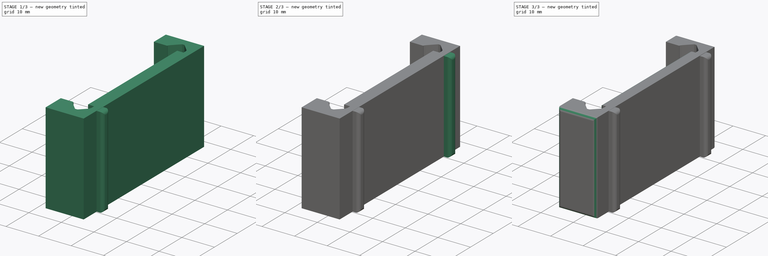
[diagram: build sequence overview — one tinted view per stage of 3, left to right]
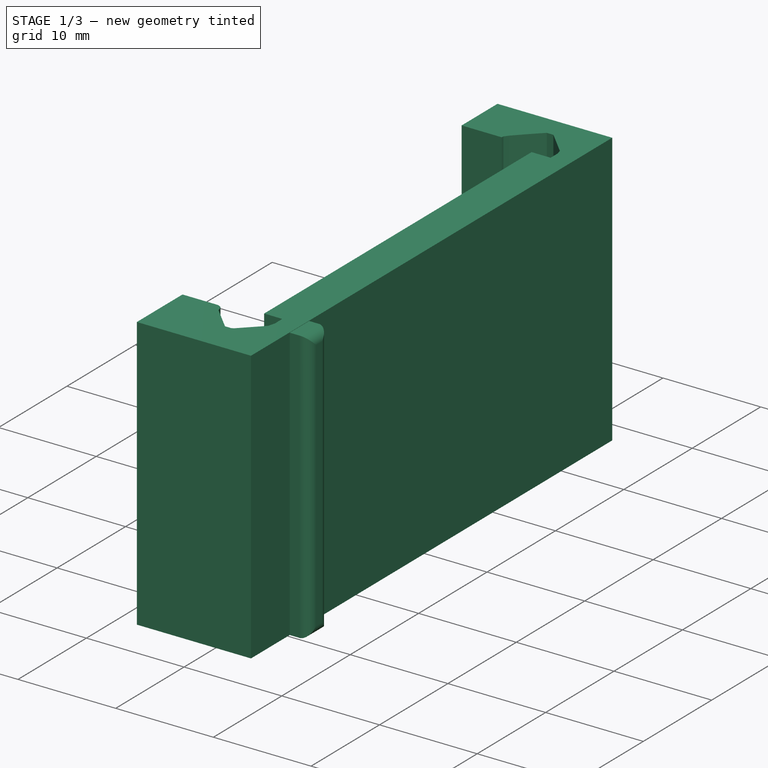
[diagram: stage 1 of 3 — iso view after this stage's code; geometry added in this stage tinted green]
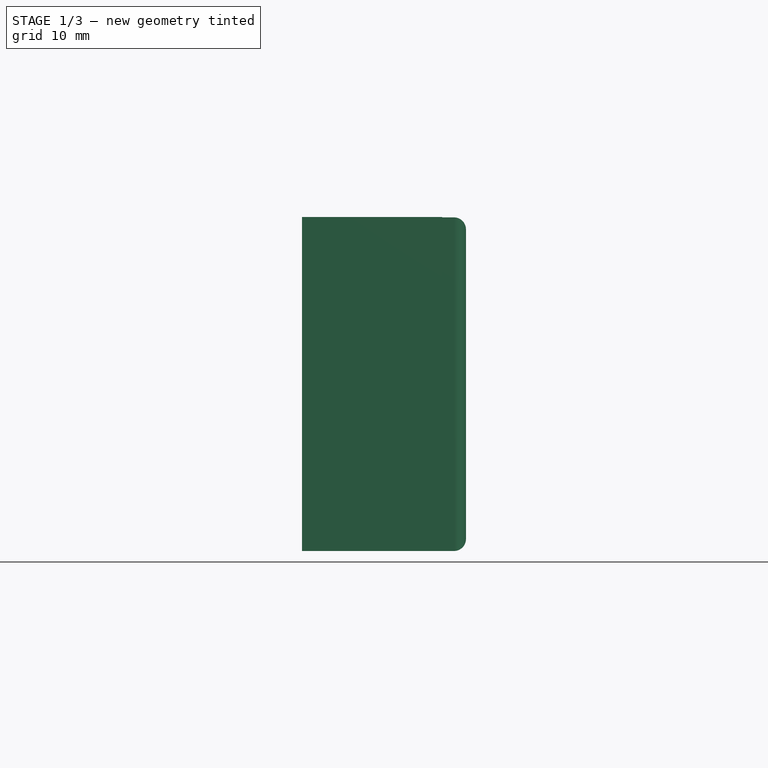
[diagram: stage 1 of 3 — front view after this stage's code; geometry added in this stage tinted green]
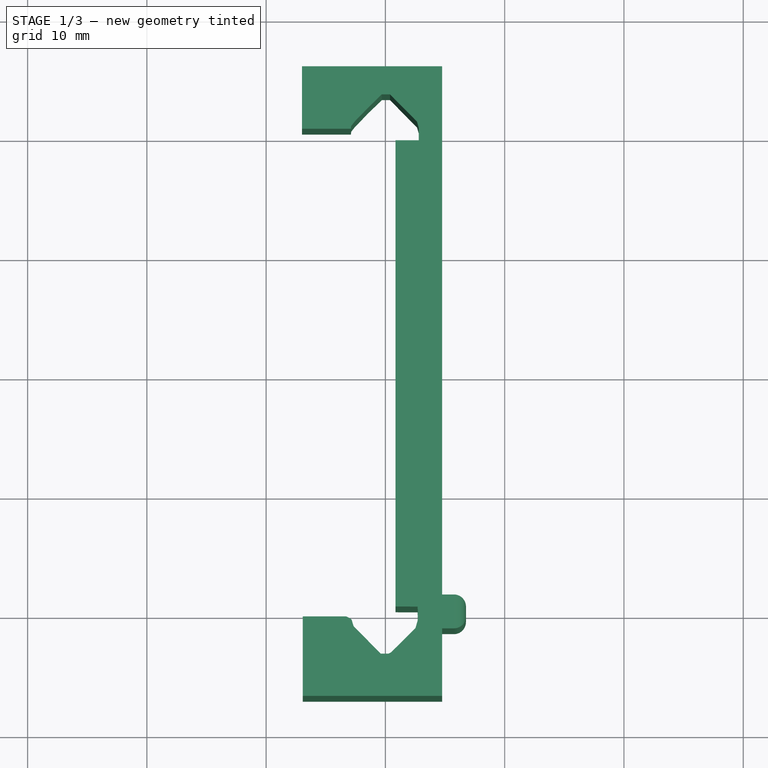
[diagram: stage 1 of 3 — top view after this stage's code; geometry added in this stage tinted green]
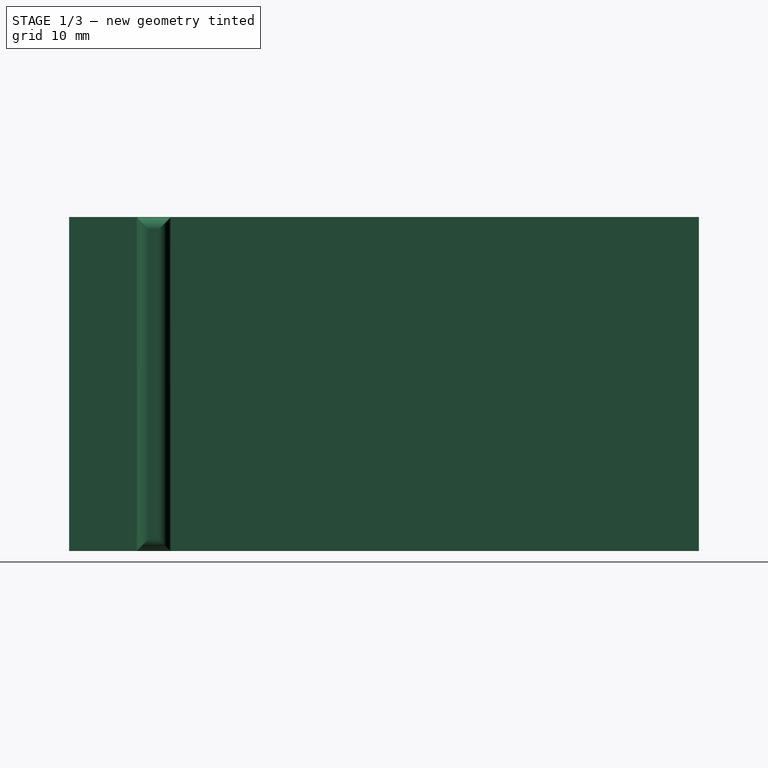
[diagram: stage 1 of 3 — right view after this stage's code; geometry added in this stage tinted green]
FCSTD DOCUMENT  (FreeCAD 0.14R2935 (Git))
Label: x-axis_limit_switch_mount
License: CC-BY 3.0
LicenseURL: http://creativecommons.org/licenses/by/3.0/
objects: PartDesign::Fillet×5, Sketcher::SketchObject×4, PartDesign::Pad×3
note: 15 computed .brp shape members not serialized (recipe doc carries the construction recipe); baked Part::Feature solids carry a one-line shape summary decoded from their .brp

FEATURE [Sketcher::SketchObject] Sketch
  sketch-geometry (122):
    g0: Circle CenterX=0 CenterY=10 CenterZ=0 NormalX=0 NormalY=0 NormalZ=-1 Radius=2.1
    g1: ArcOfCircle CenterX=11.875 CenterY=-20.5929 CenterZ=0 NormalX=0 NormalY=0 NormalZ=1 Radius=0.5 StartAngle=5.49779 EndAngle=6.28319
    g2: LineSegment StartX=12.375 StartY=-20.5929 StartZ=0 EndX=12.375 EndY=-20 EndZ=0
    g3: LineSegment StartX=12.375 StartY=-20 StartZ=0 EndX=10 EndY=-20 EndZ=0
    g4: LineSegment StartX=10 StartY=-20 StartZ=0 EndX=10 EndY=-10.3 EndZ=0
    g5: LineSegment StartX=9.7 StartY=-10 StartZ=0 EndX=10 EndY=-10.3 EndZ=0
    g6: LineSegment StartX=10 StartY=-9.7 StartZ=0 EndX=9.7 EndY=-10 EndZ=0
    g7: LineSegment StartX=10 StartY=-9.7 StartZ=0 EndX=10 EndY=6.7 EndZ=0
    g8: ArcOfCircle CenterX=9.7 CenterY=6.7 CenterZ=0 NormalX=0 NormalY=0 NormalZ=1 Radius=0.3 StartAngle=0 EndAngle=1.5708
    g9: LineSegment StartX=9.7 StartY=7 StartZ=0 EndX=8 EndY=7 EndZ=0
    g10: LineSegment StartX=8 StartY=7 StartZ=0 EndX=8 EndY=4 EndZ=0
    g11: LineSegment StartX=8 StartY=4 StartZ=0 EndX=7.06066 EndY=4 EndZ=0
    g12: LineSegment StartX=7.06066 StartY=4 StartZ=0 EndX=4 EndY=7.06066 EndZ=0
    g13: LineSegment StartX=4 StartY=7.06066 StartZ=0 EndX=4 EndY=9.7 EndZ=0
    g14: LineSegment StartX=4 StartY=9.7 StartZ=0 EndX=3.7 EndY=10 EndZ=0
    g15: LineSegment StartX=3.7 StartY=10 StartZ=0 EndX=4 EndY=10.3 EndZ=0
    g16: LineSegment StartX=4 StartY=10.3 StartZ=0 EndX=4 EndY=12.9393 EndZ=0
    g17: LineSegment StartX=4 StartY=12.9393 StartZ=0 EndX=7.06066 EndY=16 EndZ=0
    g18: LineSegment StartX=7.06066 StartY=16 StartZ=0 EndX=8 EndY=16 EndZ=0
    g19: LineSegment StartX=8 StartY=16 StartZ=0 EndX=8 EndY=13 EndZ=0
    g20: LineSegment StartX=8 StartY=13 StartZ=0 EndX=9.7 EndY=13 EndZ=0
    g21: ArcOfCircle CenterX=9.7 CenterY=13.3 CenterZ=0 NormalX=0 NormalY=0 NormalZ=1 Radius=0.3 StartAngle=4.71239 EndAngle=6.28319
    g22: LineSegment StartX=10 StartY=13.3 StartZ=0 EndX=10 EndY=20 EndZ=0
    g23: LineSegment StartX=12.375 StartY=20 StartZ=0 EndX=10 EndY=20 EndZ=0
    g24: LineSegment StartX=12.375 StartY=20.5929 StartZ=0 EndX=12.375 EndY=20 EndZ=0
    g25: ArcOfCircle CenterX=11.875 CenterY=20.5929 CenterZ=0 NormalX=0 NormalY=0 NormalZ=1 Radius=0.5 StartAngle=0 EndAngle=0.785398
    g26: LineSegment StartX=10.3536 StartY=22.8214 StartZ=0 EndX=12.2286 EndY=20.9464 EndZ=0
    g27: ArcOfCircle CenterX=10 CenterY=22.4679 CenterZ=0 NormalX=0 NormalY=0 NormalZ=1 Radius=0.5 StartAngle=0.785398 EndAngle=2.35619
    g28: LineSegment StartX=7.77145 StartY=20.9464 StartZ=0 EndX=9.64645 EndY=22.8214 EndZ=0
    g29: ArcOfCircle CenterX=8.125 CenterY=20.5929 CenterZ=0 NormalX=0 NormalY=0 NormalZ=1 Radius=0.5 StartAngle=2.35619 EndAngle=3.14159
    g30: LineSegment StartX=7.625 StartY=20.5 StartZ=0 EndX=7.625 EndY=20.5929 EndZ=0
    g31: ArcOfCircle CenterX=7.125 CenterY=20.5 CenterZ=0 NormalX=0 NormalY=0 NormalZ=1 Radius=0.5 StartAngle=4.71239 EndAngle=6.28319
    g32: LineSegment StartX=7.125 StartY=20 StartZ=0 EndX=3.3 EndY=20 EndZ=0
    g33: ArcOfCircle CenterX=3.3 CenterY=19.7 CenterZ=0 NormalX=0 NormalY=0 NormalZ=1 Radius=0.3 StartAngle=1.5708 EndAngle=3.14159
    g34: LineSegment StartX=3 StartY=19.7 StartZ=0 EndX=3 EndY=18 EndZ=0
    g35: LineSegment StartX=3 StartY=18 StartZ=0 EndX=6 EndY=18 EndZ=0
    g36: LineSegment StartX=6 StartY=18 StartZ=0 EndX=6 EndY=17.0607 EndZ=0
    g37: LineSegment StartX=6 StartY=17.0607 StartZ=0 EndX=2.93934 EndY=14 EndZ=0
    g38: LineSegment StartX=2.93934 StartY=14 StartZ=0 EndX=0.3 EndY=14 EndZ=0
    g39: LineSegment StartX=0.3 StartY=14 StartZ=0 EndX=0 EndY=13.7 EndZ=0
    g40: LineSegment StartX=0 StartY=13.7 StartZ=0 EndX=-0.3 EndY=14 EndZ=0
    g41: LineSegment StartX=-0.3 StartY=14 StartZ=0 EndX=-2.93934 EndY=14 EndZ=0
    g42: LineSegment StartX=-2.93934 StartY=14 StartZ=0 EndX=-6 EndY=17.0607 EndZ=0
    g43: LineSegment StartX=-6 StartY=17.0607 StartZ=0 EndX=-6 EndY=18 EndZ=0
    g44: LineSegment StartX=-6 StartY=18 StartZ=0 EndX=-3 EndY=18 EndZ=0
    g45: LineSegment StartX=-3 StartY=18 StartZ=0 EndX=-3 EndY=19.7 EndZ=0
    g46: ArcOfCircle CenterX=-3.3 CenterY=19.7 CenterZ=0 NormalX=0 NormalY=0 NormalZ=1 Radius=0.3 StartAngle=0 EndAngle=1.5708
    g47: LineSegment StartX=-3.3 StartY=20 StartZ=0 EndX=-9 EndY=20 EndZ=0
    g48: ArcOfCircle CenterX=-9 CenterY=19 CenterZ=0 NormalX=0 NormalY=0 NormalZ=1 Radius=1 StartAngle=1.5708 EndAngle=3.14159
    g49: LineSegment StartX=-10 StartY=19 StartZ=0 EndX=-10 EndY=13.3 EndZ=0
    g50: ArcOfCircle CenterX=-9.7 CenterY=13.3 CenterZ=0 NormalX=0 NormalY=0 NormalZ=1 Radius=0.3 StartAngle=3.14159 EndAngle=4.71239
    g51: LineSegment StartX=-9.7 StartY=13 StartZ=0 EndX=-8 EndY=13 EndZ=0
    g52: LineSegment StartX=-8 StartY=13 StartZ=0 EndX=-8 EndY=16 EndZ=0
    g53: LineSegment StartX=-8 StartY=16 StartZ=0 EndX=-7.06066 EndY=16 EndZ=0
    g54: LineSegment StartX=-7.06066 StartY=16 StartZ=0 EndX=-4 EndY=12.9393 EndZ=0
    g55: LineSegment StartX=-4 StartY=12.9393 StartZ=0 EndX=-4 EndY=10.3 EndZ=0
    g56: LineSegment StartX=-4 StartY=10.3 StartZ=0 EndX=-3.7 EndY=10 EndZ=0
    g57: LineSegment StartX=-3.7 StartY=10 StartZ=0 EndX=-4 EndY=9.7 EndZ=0
    g58: LineSegment StartX=-4 StartY=9.7 StartZ=0 EndX=-4 EndY=7.06066 EndZ=0
    g59: LineSegment StartX=-4 StartY=7.06066 StartZ=0 EndX=-7.06066 EndY=4 EndZ=0
    g60: LineSegment StartX=-7.06066 StartY=4 StartZ=0 EndX=-8 EndY=4 EndZ=0
    g61: LineSegment StartX=-8 StartY=4 StartZ=0 EndX=-8 EndY=7 EndZ=0
    g62: LineSegment StartX=-8 StartY=7 StartZ=0 EndX=-9.7 EndY=7 EndZ=0
    g63: ArcOfCircle CenterX=-9.7 CenterY=6.7 CenterZ=0 NormalX=0 NormalY=0 NormalZ=1 Radius=0.3 StartAngle=1.5708 EndAngle=3.14159
    g64: LineSegment StartX=-10 StartY=6.7 StartZ=0 EndX=-10 EndY=-6.7 EndZ=0
    g65: ArcOfCircle CenterX=-9.7 CenterY=-6.7 CenterZ=0 NormalX=0 NormalY=0 NormalZ=1 Radius=0.3 StartAngle=3.14159 EndAngle=4.71239
    g66: LineSegment StartX=-9.7 StartY=-7 StartZ=0 EndX=-8 EndY=-7 EndZ=0
    g67: LineSegment StartX=-8 StartY=-7 StartZ=0 EndX=-8 EndY=-4 EndZ=0
    g68: LineSegment StartX=-8 StartY=-4 StartZ=0 EndX=-7.06066 EndY=-4 EndZ=0
    g69: LineSegment StartX=-7.06066 StartY=-4 StartZ=0 EndX=-4 EndY=-7.06066 EndZ=0
    g70: LineSegment StartX=-4 StartY=-7.06066 StartZ=0 EndX=-4 EndY=-9.7 EndZ=0
    g71: LineSegment StartX=-4 StartY=-9.7 StartZ=0 EndX=-3.7 EndY=-10 EndZ=0
    g72: LineSegment StartX=-3.7 StartY=-10 StartZ=0 EndX=-4 EndY=-10.3 EndZ=0
    g73: LineSegment StartX=-4 StartY=-10.3 StartZ=0 EndX=-4 EndY=-12.9393 EndZ=0
    g74: LineSegment StartX=-4 StartY=-12.9393 StartZ=0 EndX=-7.06066 EndY=-16 EndZ=0
    g75: LineSegment StartX=-7.06066 StartY=-16 StartZ=0 EndX=-8 EndY=-16 EndZ=0
    g76: LineSegment StartX=-8 StartY=-16 StartZ=0 EndX=-8 EndY=-13 EndZ=0
    g77: LineSegment StartX=-8 StartY=-13 StartZ=0 EndX=-9.7 EndY=-13 EndZ=0
    g78: ArcOfCircle CenterX=-9.7 CenterY=-13.3 CenterZ=0 NormalX=0 NormalY=0 NormalZ=1 Radius=0.3 StartAngle=1.5708 EndAngle=3.14159
    g79: LineSegment StartX=-10 StartY=-13.3 StartZ=0 EndX=-10 EndY=-19 EndZ=0
    g80: ArcOfCircle CenterX=-9 CenterY=-19 CenterZ=0 NormalX=0 NormalY=0 NormalZ=1 Radius=1 StartAngle=3.14159 EndAngle=4.71239
    g81: LineSegment StartX=-9 StartY=-20 StartZ=0 EndX=-3.3 EndY=-20 EndZ=0
    g82: ArcOfCircle CenterX=-3.3 CenterY=-19.7 CenterZ=0 NormalX=0 NormalY=0 NormalZ=1 Radius=0.3 StartAngle=4.71239 EndAngle=6.28319
    g83: LineSegment StartX=-3 StartY=-19.7 StartZ=0 EndX=-3 EndY=-18 EndZ=0
    g84: LineSegment StartX=-3 StartY=-18 StartZ=0 EndX=-6 EndY=-18 EndZ=0
    g85: LineSegment StartX=-6 StartY=-18 StartZ=0 EndX=-6 EndY=-17.0607 EndZ=0
    g86: LineSegment StartX=-6 StartY=-17.0607 StartZ=0 EndX=-2.93934 EndY=-14 EndZ=0
    g87: LineSegment StartX=-2.93934 StartY=-14 StartZ=0 EndX=-0.3 EndY=-14 EndZ=0
    g88: LineSegment StartX=-0.3 StartY=-14 StartZ=0 EndX=0 EndY=-13.7 EndZ=0
    g89: LineSegment StartX=0 StartY=-13.7 StartZ=0 EndX=0.3 EndY=-14 EndZ=0
    g90: LineSegment StartX=0.3 StartY=-14 StartZ=0 EndX=2.93934 EndY=-14 EndZ=0
    g91: LineSegment StartX=2.93934 StartY=-14 StartZ=0 EndX=6 EndY=-17.0607 EndZ=0
    g92: LineSegment StartX=6 StartY=-17.0607 StartZ=0 EndX=6 EndY=-18 EndZ=0
    g93: LineSegment StartX=6 StartY=-18 StartZ=0 EndX=3 EndY=-18 EndZ=0
    g94: LineSegment StartX=3 StartY=-18 StartZ=0 EndX=3 EndY=-19.7 EndZ=0
    g95: ArcOfCircle CenterX=3.3 CenterY=-19.7 CenterZ=0 NormalX=0 NormalY=0 NormalZ=1 Radius=0.3 StartAngle=3.14159 EndAngle=4.71239
    g96: LineSegment StartX=3.3 StartY=-20 StartZ=0 EndX=7.125 EndY=-20 EndZ=0
    g97: ArcOfCircle CenterX=7.125 CenterY=-20.5 CenterZ=0 NormalX=0 NormalY=0 NormalZ=1 Radius=0.5 StartAngle=0 EndAngle=1.5708
    g98: LineSegment StartX=7.625 StartY=-20.5 StartZ=0 EndX=7.625 EndY=-20.5929 EndZ=0
    g99: ArcOfCircle CenterX=8.125 CenterY=-20.5929 CenterZ=0 NormalX=0 NormalY=0 NormalZ=1 Radius=0.5 StartAngle=3.14159 EndAngle=3.92699
    g100: LineSegment StartX=7.77145 StartY=-20.9464 StartZ=0 EndX=9.64645 EndY=-22.8214 EndZ=0
    g101: ArcOfCircle CenterX=10 CenterY=-22.4679 CenterZ=0 NormalX=0 NormalY=0 NormalZ=1 Radius=0.5 StartAngle=3.92699 EndAngle=5.49779
    g102: LineSegment StartX=10.3536 StartY=-22.8214 StartZ=0 EndX=12.2286 EndY=-20.9464 EndZ=0
    g103: Circle CenterX=0 CenterY=-10 CenterZ=0 NormalX=0 NormalY=0 NormalZ=-1 Radius=2.1
    g104: LineSegment StartX=-8 StartY=2.5 StartZ=0 EndX=-6.43934 EndY=2.5 EndZ=0
    g105: LineSegment StartX=-6.43934 StartY=2.5 StartZ=0 EndX=-2.93934 EndY=6 EndZ=0
    g106: LineSegment StartX=-2.93934 StartY=6 StartZ=0 EndX=2.93934 EndY=6 EndZ=0
    g107: LineSegment StartX=2.93934 StartY=6 StartZ=0 EndX=6.43934 EndY=2.5 EndZ=0
    g108: LineSegment StartX=6.43934 StartY=2.5 StartZ=0 EndX=8 EndY=2.5 EndZ=0
    g109: LineSegment StartX=8 StartY=2.5 StartZ=0 EndX=8 EndY=-2.5 EndZ=0
    g110: LineSegment StartX=8 StartY=-2.5 StartZ=0 EndX=6.43934 EndY=-2.5 EndZ=0
    g111: LineSegment StartX=6.43934 StartY=-2.5 StartZ=0 EndX=2.93934 EndY=-6 EndZ=0
    g112: LineSegment StartX=2.93934 StartY=-6 StartZ=0 EndX=-2.93934 EndY=-6 EndZ=0
    g113: LineSegment StartX=-2.93934 StartY=-6 StartZ=0 EndX=-6.43934 EndY=-2.5 EndZ=0
    g114: LineSegment StartX=-6.43934 StartY=-2.5 StartZ=0 EndX=-8 EndY=-2.5 EndZ=0
    g115: LineSegment StartX=-8 StartY=-2.5 StartZ=0 EndX=-8 EndY=2.5 EndZ=0
    g116: LineSegment StartX=8 StartY=-16 StartZ=0 EndX=7.06066 EndY=-16 EndZ=0
    g117: LineSegment StartX=7.06066 StartY=-16 StartZ=0 EndX=4 EndY=-12.9393 EndZ=0
    g118: LineSegment StartX=4 StartY=-12.9393 StartZ=0 EndX=4 EndY=-7.06066 EndZ=0
    g119: LineSegment StartX=4 StartY=-7.06066 StartZ=0 EndX=7.06066 EndY=-4 EndZ=0
    g120: LineSegment StartX=7.06066 StartY=-4 StartZ=0 EndX=8 EndY=-4 EndZ=0
    g121: LineSegment StartX=8 StartY=-4 StartZ=0 EndX=8 EndY=-16 EndZ=0
FEATURE [Sketcher::SketchObject] Sketch001
  sketch-geometry (31):
    g0: LineSegment StartX=7.12948 StartY=20.7812 StartZ=0 EndX=7.44524 EndY=21.1871 EndZ=0
    g1: LineSegment StartX=7.44524 StartY=21.1871 StartZ=0 EndX=7.85489 EndY=21.6076 EndZ=0
    g2: LineSegment StartX=7.85489 StartY=21.6076 StartZ=0 EndX=8.50825 EndY=22.2835 EndZ=0
    g3: LineSegment StartX=8.50825 StartY=22.2835 StartZ=0 EndX=9.69649 EndY=23.4421 EndZ=0
    g4: LineSegment StartX=9.69649 StartY=23.4421 StartZ=0 EndX=10.3845 EndY=23.4421 EndZ=0
    g5: LineSegment StartX=10.3845 StartY=23.4421 StartZ=0 EndX=12.6553 EndY=21.142 EndZ=0
    g6: LineSegment StartX=12.6553 StartY=21.142 StartZ=0 EndX=12.7981 EndY=20.6259 EndZ=0
    g7: LineSegment StartX=12.7981 StartY=20.6259 StartZ=0 EndX=12.7981 EndY=19.9836 EndZ=0
    g8: LineSegment StartX=12.7981 StartY=19.9836 StartZ=0 EndX=12.7981 EndY=19.5858 EndZ=0
    g9: LineSegment StartX=12.7981 StartY=19.5858 StartZ=0 EndX=10.851 EndY=19.5858 EndZ=0
    g10: LineSegment StartX=10.851 StartY=19.5858 StartZ=0 EndX=10.851 EndY=17.4753 EndZ=0
    g11: LineSegment StartX=10.851 StartY=17.4753 StartZ=0 EndX=10.851 EndY=14.855 EndZ=0
    g12: LineSegment StartX=10.851 StartY=14.855 StartZ=0 EndX=10.851 EndY=-19.5053 EndZ=0
    g13: LineSegment StartX=10.851 StartY=-19.5053 StartZ=0 EndX=12.7015 EndY=-19.5175 EndZ=0
    g14: LineSegment StartX=12.7015 StartY=-19.5175 StartZ=0 EndX=12.7241 EndY=-20.6001 EndZ=0
    g15: LineSegment StartX=12.7241 StartY=-20.6001 StartZ=0 EndX=12.5211 EndY=-21.3218 EndZ=0
    g16: LineSegment StartX=12.5211 StartY=-21.3218 StartZ=0 EndX=10.4561 EndY=-23.3626 EndZ=0
    g17: LineSegment StartX=10.4561 StartY=-23.3626 StartZ=0 EndX=10.2431 EndY=-23.4645 EndZ=0
    g18: LineSegment StartX=10.2431 StartY=-23.4645 StartZ=0 EndX=9.6102 EndY=-23.4584 EndZ=0
    g19: LineSegment StartX=9.6102 StartY=-23.4584 StartZ=0 EndX=7.33356 EndY=-21.1639 EndZ=0
    g20: LineSegment StartX=7.33356 StartY=-21.1639 StartZ=0 EndX=7.17275 EndY=-20.632 EndZ=0
    g21: LineSegment StartX=7.17275 StartY=-20.632 StartZ=0 EndX=7.01309 EndY=-20.4734 EndZ=0
    g22: LineSegment StartX=7.01309 StartY=-20.4734 StartZ=0 EndX=6.70221 EndY=-20.3407 EndZ=0
    g23: LineSegment StartX=6.70221 StartY=-20.3407 StartZ=0 EndX=3.07281 EndY=-20.3407 EndZ=0
    g24: LineSegment StartX=3.07281 StartY=-20.3407 StartZ=0 EndX=3.07281 EndY=-27.0067 EndZ=0
    g25: LineSegment StartX=3.07281 StartY=-27.0067 StartZ=0 EndX=14.7525 EndY=-27.0067 EndZ=0
    g26: LineSegment StartX=14.7525 StartY=-27.0067 StartZ=0 EndX=14.7525 EndY=25.7958 EndZ=0
    g27: LineSegment StartX=14.7525 StartY=25.7958 StartZ=0 EndX=3.01101 EndY=25.7958 EndZ=0
    g28: LineSegment StartX=3.01101 StartY=25.7958 StartZ=0 EndX=3.01101 EndY=20.5556 EndZ=0
    g29: LineSegment StartX=3.01101 StartY=20.5556 StartZ=0 EndX=7.10693 EndY=20.5556 EndZ=0
    g30: LineSegment StartX=7.10693 StartY=20.5556 StartZ=0 EndX=7.12948 EndY=20.7812 EndZ=0
  constraints (45):
    c: Coincident(g0,g1)
    c: Coincident(g1,g2)
    c: Coincident(g2,g3)
    c: Coincident(g3,g4)
    c: Horizontal(g4)
    c: Coincident(g4,g5)
    c: Coincident(g5,g6)
    c: Coincident(g6,g7)
    c: Vertical(g7)
    c: Coincident(g7,g8)
    c: Vertical(g8)
    c: Coincident(g8,g9)
    c: Horizontal(g9)
    c: Coincident(g9,g10)
    c: Vertical(g10)
    c: Coincident(g10,g11)
    c: Vertical(g11)
    c: Coincident(g11,g12)
    c: Vertical(g12)
    c: Coincident(g12,g13)
    c: Coincident(g13,g14)
    c: Coincident(g14,g15)
    c: Coincident(g15,g16)
    c: Coincident(g16,g17)
    c: Coincident(g17,g18)
    c: Coincident(g18,g19)
    c: Coincident(g19,g20)
    c: Coincident(g20,g21)
    c: Coincident(g21,g22)
    c: Coincident(g22,g23)
    c: Horizontal(g23)
    c: Coincident(g23,g24)
    c: Vertical(g24)
    c: Coincident(g24,g25)
    c: Horizontal(g25)
    c: Coincident(g25,g26)
    c: Vertical(g26)
    c: Coincident(g26,g27)
    c: Horizontal(g27)
    c: Coincident(g27,g28)
    c: Vertical(g28)
    c: Coincident(g28,g29)
    c: Horizontal(g29)
    c: Coincident(g29,g30)
    c: Coincident(g0,g30)
FEATURE [PartDesign::Pad] Pad
  Length = 28
  Length2 = 100
  Sketch = -> Sketch001
  Type = 0
FEATURE [Sketcher::SketchObject] Sketch002
  Placement = pos=(14.7525,0,0) rot=(0.57735,0.57735,0.57735;2.0944rad)
  Support = -> Pad [Face14]
  sketch-geometry (4):
    g0: LineSegment StartX=-21.3381 StartY=27.9699 StartZ=0 EndX=-18.5 EndY=27.9699 EndZ=0
    g1: LineSegment StartX=-18.5 StartY=27.9699 StartZ=0 EndX=-18.5 EndY=0 EndZ=0
    g2: LineSegment StartX=-18.5 StartY=0 StartZ=0 EndX=-21.3381 EndY=0 EndZ=0
    g3: LineSegment StartX=-21.3381 StartY=0 StartZ=0 EndX=-21.3381 EndY=27.9699 EndZ=0
  constraints (9):
    c: Coincident(g0,g1)
    c: Coincident(g1,g2)
    c: Coincident(g2,g3)
    c: Coincident(g3,g0)
    c: Horizontal(g0)
    c: Horizontal(g2)
    c: Vertical(g1)
    c: Vertical(g3)
    c: PointOnObject(g1,g-1)
FEATURE [PartDesign::Pad] Pad001
  Length = 2
  Length2 = 100
  Sketch = -> Sketch002
  Type = 0
FEATURE [PartDesign::Fillet] Fillet
  Base = -> Pad001 [Edge92,Edge94,Edge96,Edge90]
  Radius = 1
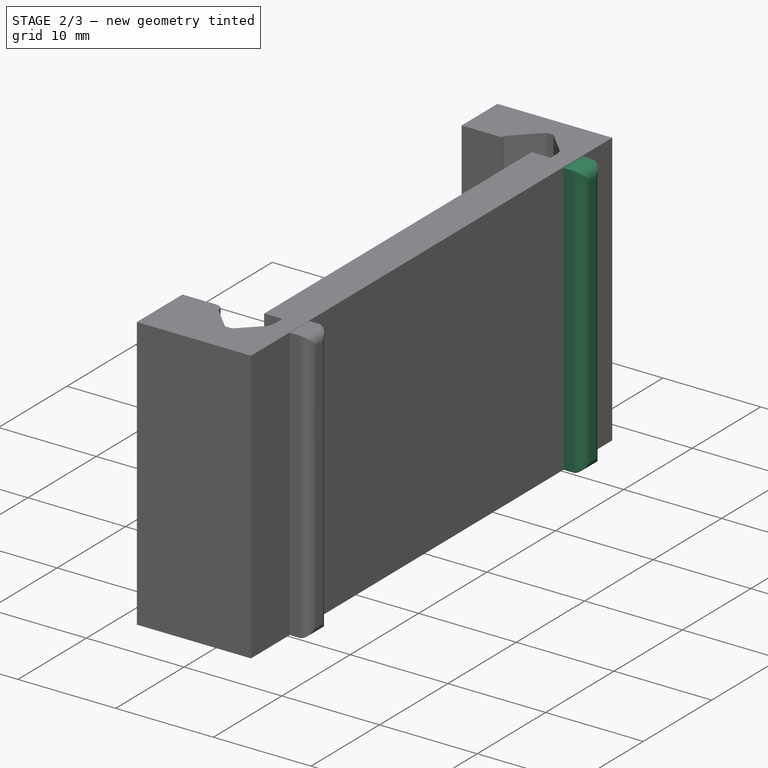
[diagram: stage 2 of 3 — iso view after this stage's code; geometry added in this stage tinted green]
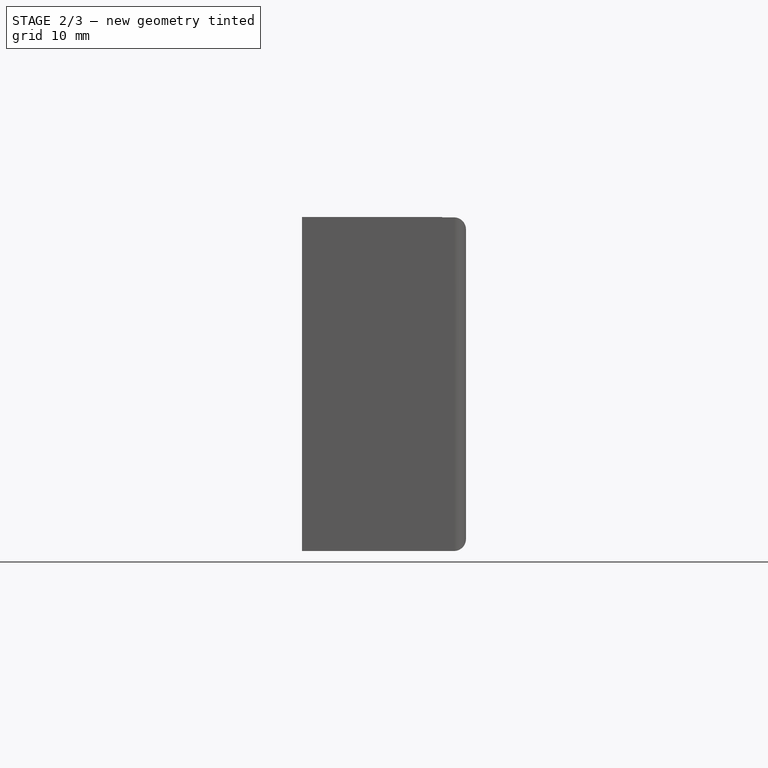
[diagram: stage 2 of 3 — front view after this stage's code; geometry added in this stage tinted green]
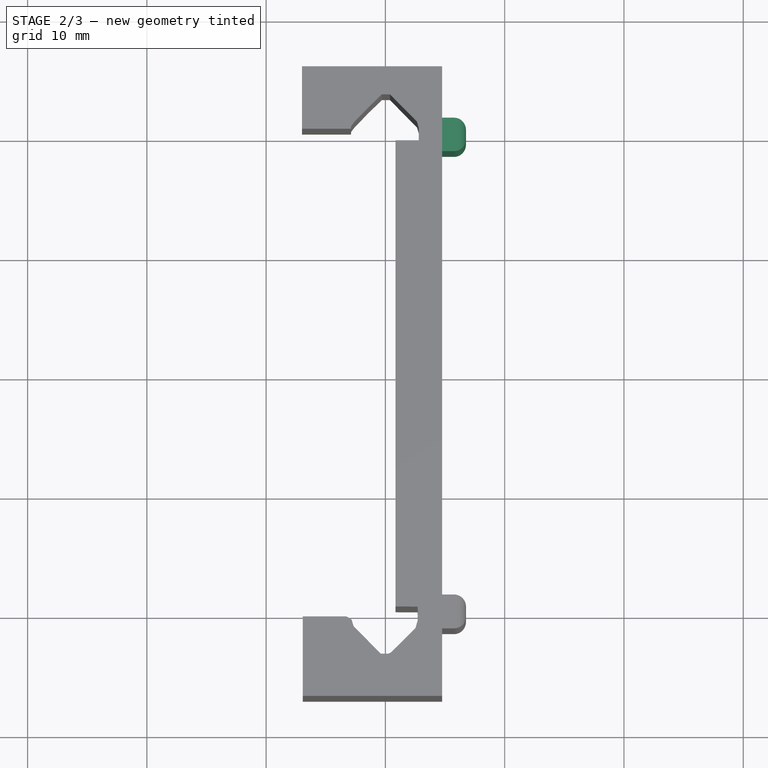
[diagram: stage 2 of 3 — top view after this stage's code; geometry added in this stage tinted green]
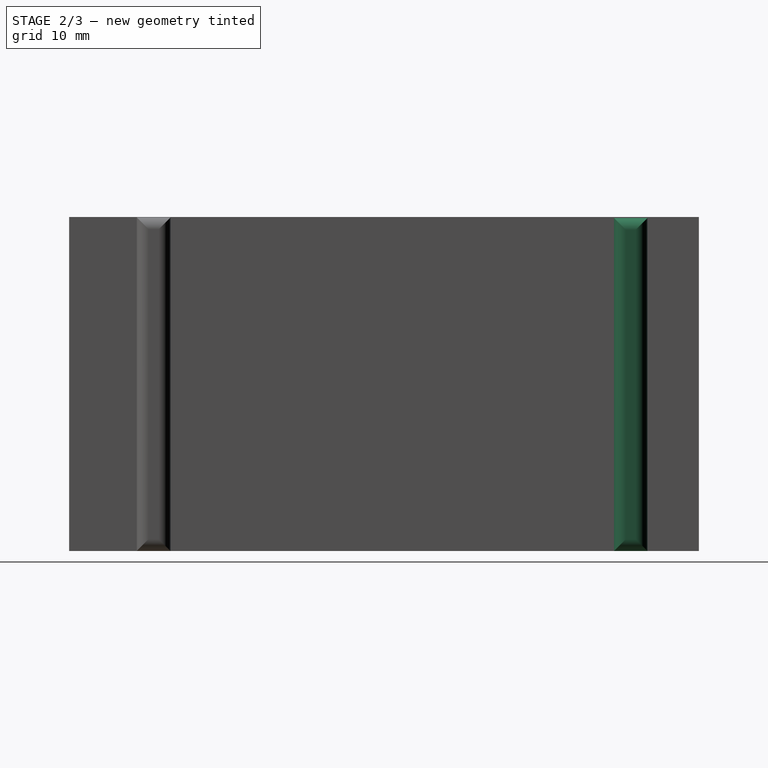
[diagram: stage 2 of 3 — right view after this stage's code; geometry added in this stage tinted green]
FEATURE [Sketcher::SketchObject] Sketch003
  Placement = pos=(14.7525,0,0) rot=(0.57735,0.57735,0.57735;2.0944rad)
  Support = -> Fillet [Face4]
  sketch-geometry (4):
    g0: LineSegment StartX=18.6824 StartY=27.9213 StartZ=0 EndX=21.4846 EndY=27.9213 EndZ=0
    g1: LineSegment StartX=21.4846 StartY=27.9213 StartZ=0 EndX=21.4846 EndY=0 EndZ=0
    g2: LineSegment StartX=21.4846 StartY=0 StartZ=0 EndX=18.6824 EndY=0 EndZ=0
    g3: LineSegment StartX=18.6824 StartY=0 StartZ=0 EndX=18.6824 EndY=27.9213 EndZ=0
  constraints (9):
    c: Coincident(g0,g1)
    c: Coincident(g1,g2)
    c: Coincident(g2,g3)
    c: Coincident(g3,g0)
    c: Horizontal(g0)
    c: Horizontal(g2)
    c: Vertical(g1)
    c: Vertical(g3)
    c: PointOnObject(g1,g-1)
FEATURE [PartDesign::Pad] Pad002
  Length = 2
  Length2 = 100
  Sketch = -> Sketch003
  Type = 0
FEATURE [PartDesign::Fillet] Fillet001
  Base = -> Pad002 [Edge8,Edge9,Edge10,Edge11]
  Radius = 1
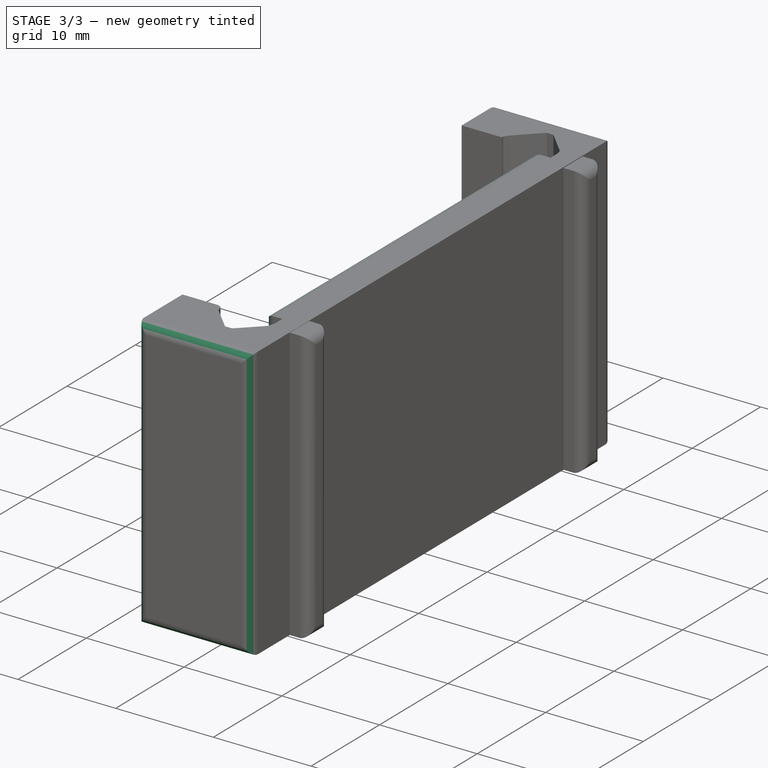
[diagram: stage 3 of 3 — iso view after this stage's code; geometry added in this stage tinted green]
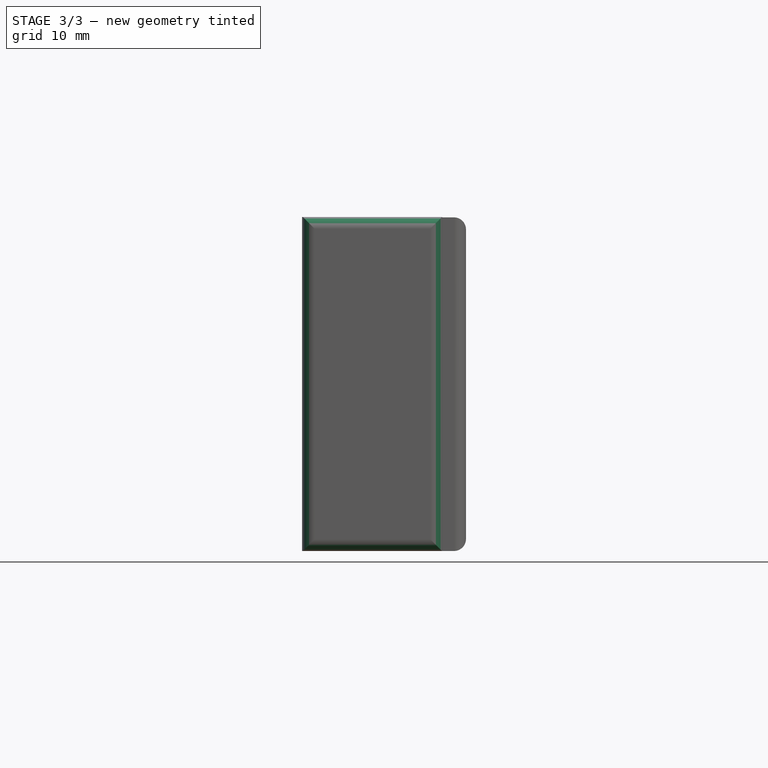
[diagram: stage 3 of 3 — front view after this stage's code; geometry added in this stage tinted green]
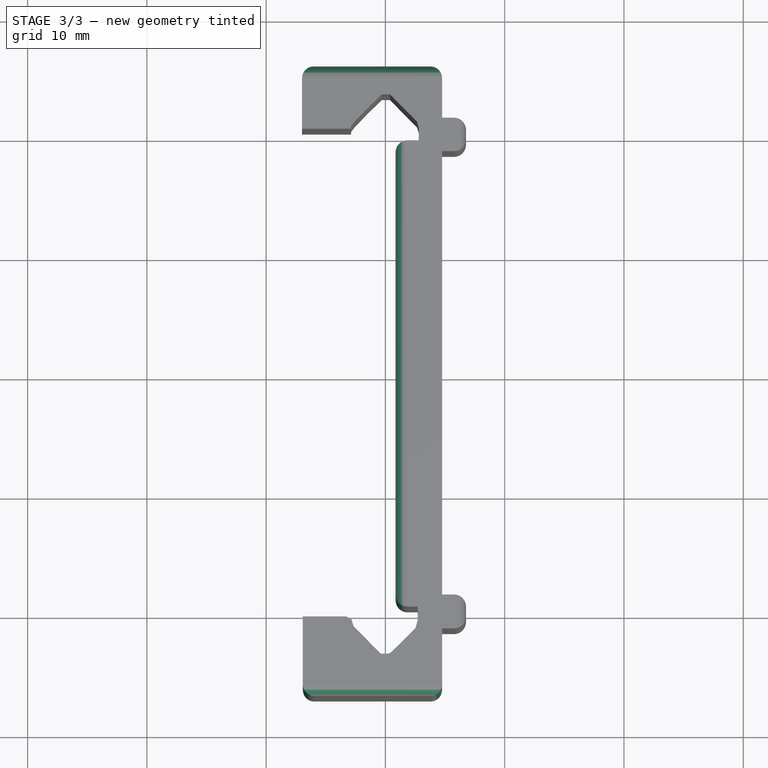
[diagram: stage 3 of 3 — top view after this stage's code; geometry added in this stage tinted green]
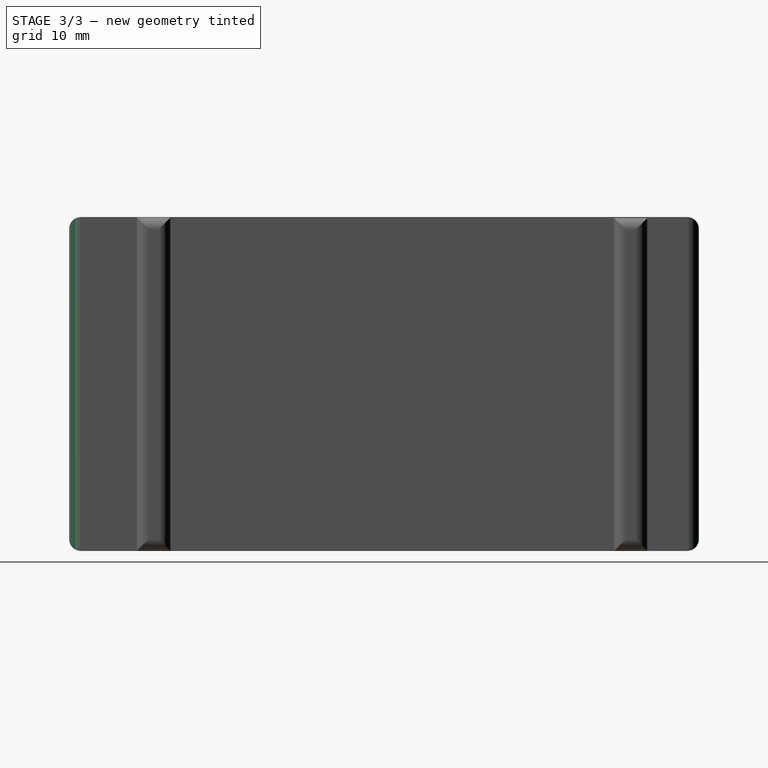
[diagram: stage 3 of 3 — right view after this stage's code; geometry added in this stage tinted green]
FEATURE [PartDesign::Fillet] Fillet002
  Base = -> Fillet001 [Edge78,Edge58,Edge32,Edge79]
  Radius = 1
FEATURE [PartDesign::Fillet] Fillet003
  Base = -> Fillet002 [Edge41,Edge80,Edge19,Edge81]
  Radius = 1
FEATURE [PartDesign::Fillet] Fillet004
  Base = -> Fillet003 [Edge96,Edge28,Edge100,Edge101]
  Radius = 1
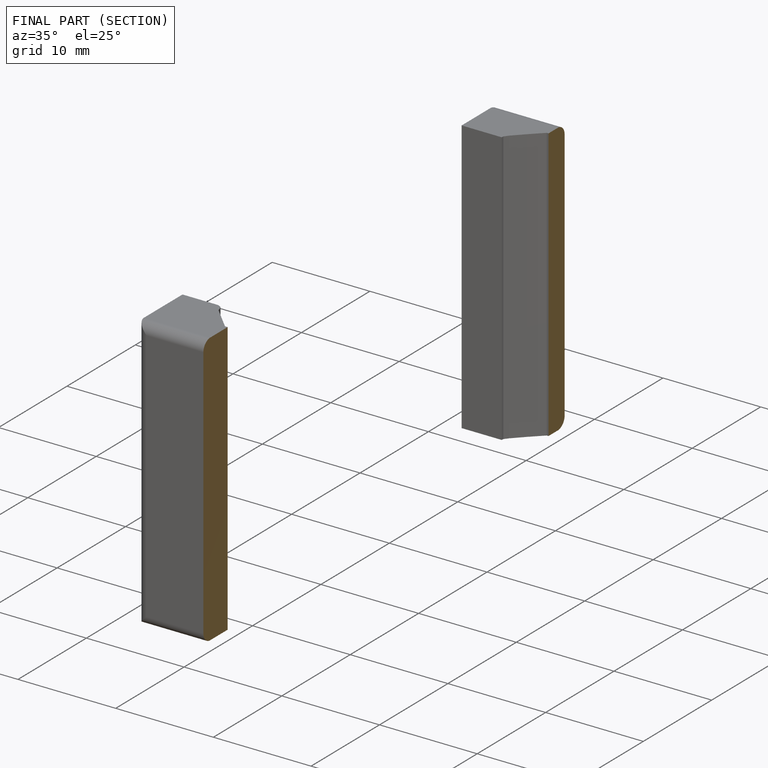
[diagram: finished part — half-section view (interior)]
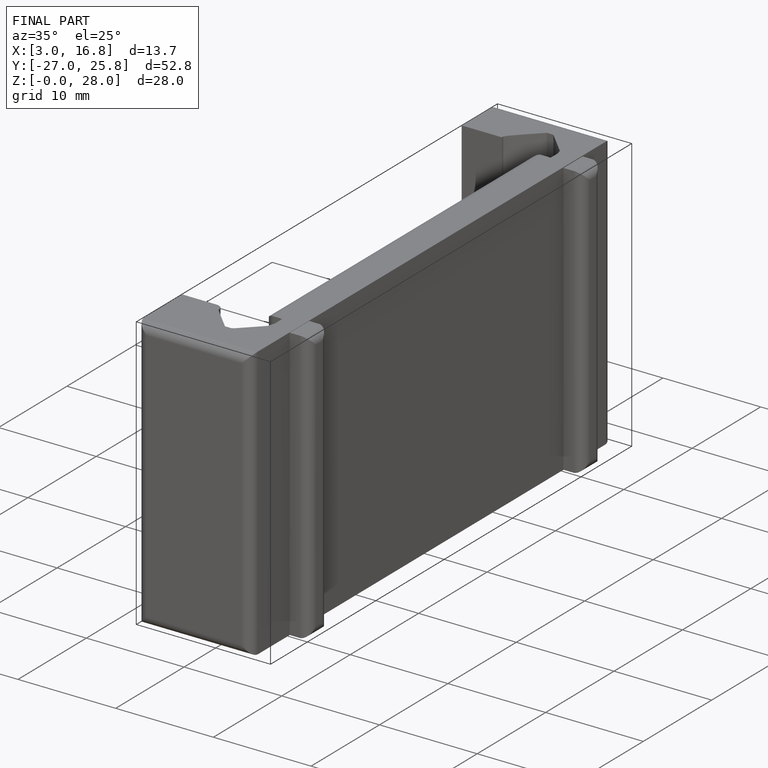
[diagram: finished part — iso view with bounding-box wireframe]
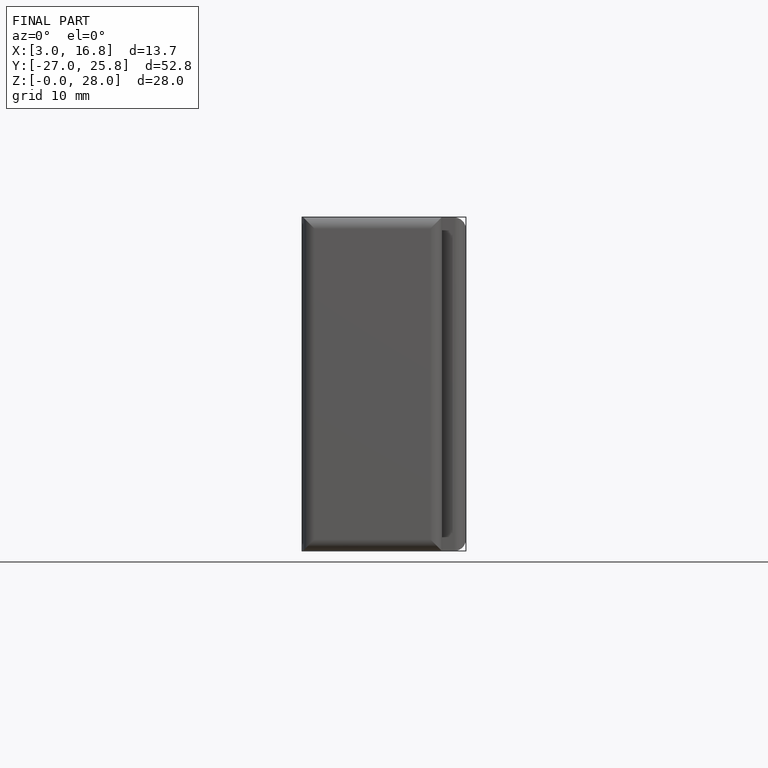
[diagram: finished part — front view with bounding-box wireframe]
